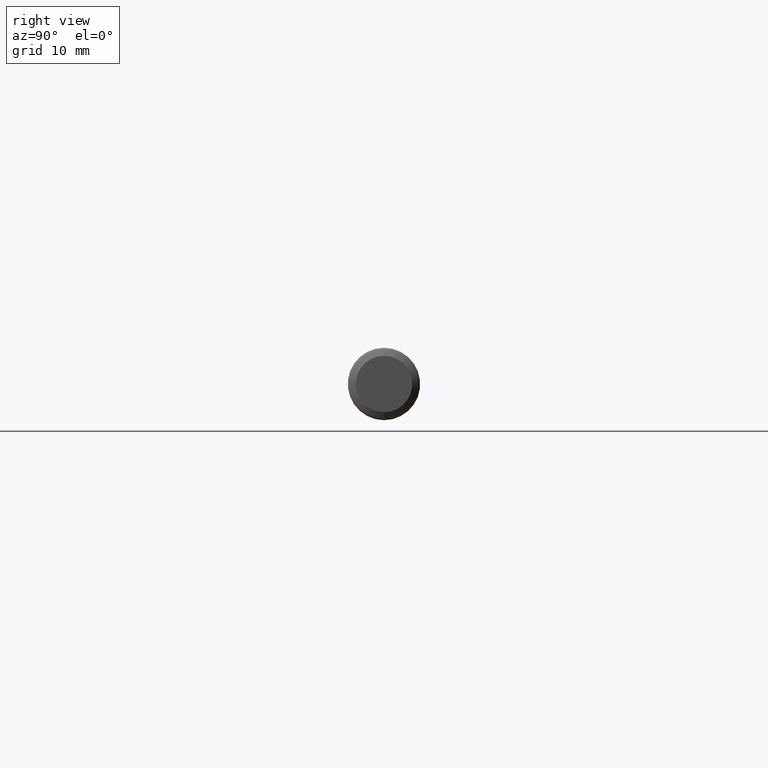
[diagram: clean part render]
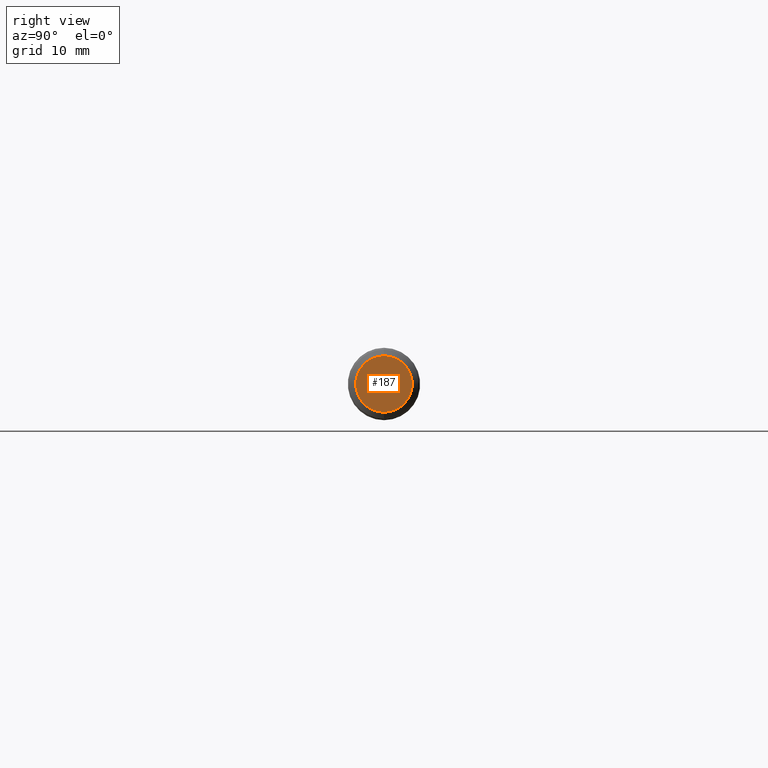
[diagram: same view with one face highlighted and labeled with its STEP entity id]
A machine part, right view. The second image highlights one B-rep face of the part: STEP entity #187.
In plain terms, the highlighted planar face has unit normal (1, 0, 0).
Its self-contained STEP definition (entity closure, byte-faithful):
#155 = CIRCLE ( 'NONE', #2280, 0.09749323704547861735 ) ;
#187 = ADVANCED_FACE ( 'NONE', ( #3025 ), #1115, .T. ) ;
#259 = CARTESIAN_POINT ( 'NONE',  ( 2.500000000000000000, 0.000000000000000000, 0.000000000000000000 ) ) ;
#319 = VERTEX_POINT ( 'NONE', #3349 ) ;
#440 = EDGE_CURVE ( 'NONE', #2169, #319, #155, .T. ) ;
#722 = DIRECTION ( 'NONE',  ( -1.000000000000000000, -0.000000000000000000, -0.000000000000000000 ) ) ;
#885 = EDGE_CURVE ( 'NONE', #319, #2169, #2046, .T. ) ;
#1115 = PLANE ( 'NONE',  #2104 ) ;
#1286 = DIRECTION ( 'NONE',  ( -1.000000000000000000, -0.000000000000000000, -0.000000000000000000 ) ) ;
#1503 = DIRECTION ( 'NONE',  ( 0.000000000000000000, 0.000000000000000000, -1.000000000000000000 ) ) ;
#1524 = CARTESIAN_POINT ( 'NONE',  ( 2.500000000000000000, 0.000000000000000000, 0.000000000000000000 ) ) ;
#2046 = CIRCLE ( 'NONE', #3018, 0.09749323704547861735 ) ;
#2104 = AXIS2_PLACEMENT_3D ( 'NONE', #259, #2743, #2764 ) ;
#2169 = VERTEX_POINT ( 'NONE', #2683 ) ;
#2280 = AXIS2_PLACEMENT_3D ( 'NONE', #1524, #722, #2361 ) ;
#2361 = DIRECTION ( 'NONE',  ( 0.000000000000000000, 0.000000000000000000, -1.000000000000000000 ) ) ;
#2605 = EDGE_LOOP ( 'NONE', ( #3160, #3027 ) ) ;
#2683 = CARTESIAN_POINT ( 'NONE',  ( 2.500000000000000000, 0.000000000000000000, -0.09749323704547861735 ) ) ;
#2743 = DIRECTION ( 'NONE',  ( 1.000000000000000000, 0.000000000000000000, 0.000000000000000000 ) ) ;
#2764 = DIRECTION ( 'NONE',  ( 0.000000000000000000, 0.000000000000000000, -1.000000000000000000 ) ) ;
#3018 = AXIS2_PLACEMENT_3D ( 'NONE', #3470, #1286, #1503 ) ;
#3025 = FACE_OUTER_BOUND ( 'NONE', #2605, .T. ) ;
#3027 = ORIENTED_EDGE ( 'NONE', *, *, #885, .F. ) ;
#3160 = ORIENTED_EDGE ( 'NONE', *, *, #440, .F. ) ;
#3349 = CARTESIAN_POINT ( 'NONE',  ( 2.500000000000000000, 1.193947806862595476E-17, 0.09749323704547861735 ) ) ;
#3470 = CARTESIAN_POINT ( 'NONE',  ( 2.500000000000000000, 0.000000000000000000, 0.000000000000000000 ) ) ;